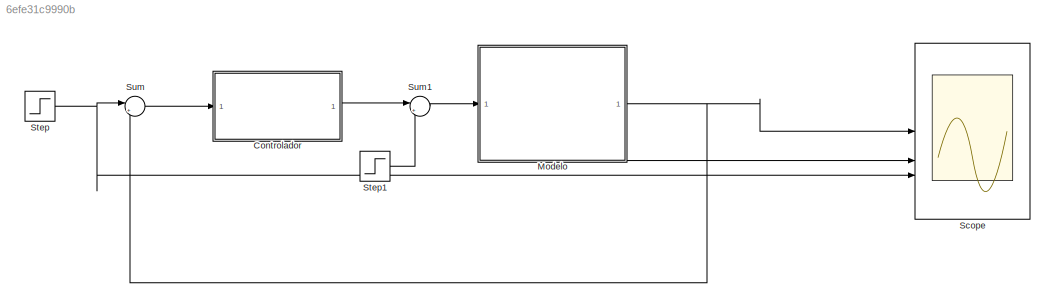
MODEL slx_6efe31c9990b
KIND model
CONFIG AbsTol = auto
CONFIG EnableMultiTasking = off
CONFIG FixedStep = Ts
CONFIG MaxStep = auto
CONFIG MinStep = auto
CONFIG RelTol = 1e-3
CONFIG SampleTimeConstraint = Unconstrained
CONFIG SolverName = FixedStepAuto
CONFIG StartTime = 0.0
CONFIG StopTime = Tsim
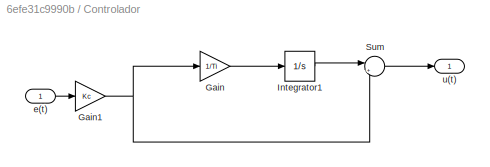
BLOCK [SubSystem] Controlador
BLOCK [Gain] Controlador/Gain
  Gain = 1/Ti
BLOCK [Gain] Controlador/Gain1
  Gain = Kc
BLOCK [Integrator] Controlador/Integrator1
  InitialCondition = X0/K
BLOCK [Sum] Controlador/Sum
  Inputs = |++
BLOCK [Inport] Controlador/e(t)
BLOCK [Outport] Controlador/u(t)
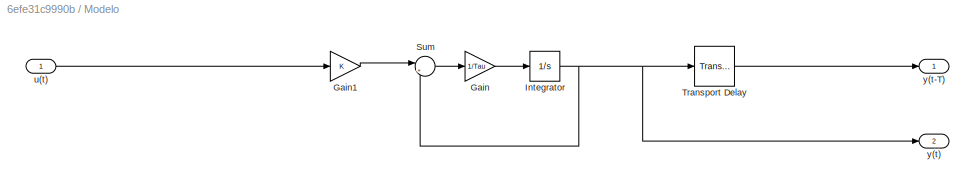
BLOCK [SubSystem] Modelo
BLOCK [Gain] Modelo/Gain
  Gain = 1/Tau
BLOCK [Gain] Modelo/Gain1
  Gain = K
BLOCK [Integrator] Modelo/Integrator
  InitialCondition = X0
BLOCK [Sum] Modelo/Sum
  Inputs = |+-
BLOCK [TransportDelay] Modelo/Transport Delay
  DelayTime = t0
  InitialOutput = X0
BLOCK [Inport] Modelo/u(t)
BLOCK [Outport] Modelo/y(t)
  Port = 2
BLOCK [Outport] Modelo/y(t-T)
BLOCK [Scope] Scope
  Floating = off
  NumInputPorts = 3
  ScopeSpecificationString = Simulink.scopes.TimeScopeBlockCfg('CurrentConfiguration', extmgr.ConfigurationSet(extmgr.Configuration('Core','General UI',true),extmgr.Configuration('Core','Source UI',true),extmgr.Configuration('Sources','WiredSimulink',true,'DataLoggingVariableName','y','DataLogging',true,'DataLoggingSaveFormat','StructureWithTime'),extmgr.Configuration('Visuals','Time Domain',true,'SerializedDisplays',{struct(...<+1508ch>
BLOCK [Step] Step
  After = 0.3
  Before = X0
  SampleTime = 0
  Time = 250
BLOCK [Step] Step1
  After = 0.01
  SampleTime = 0
  Time = 500
BLOCK [Sum] Sum
  Inputs = |+-
BLOCK [Sum] Sum1
  Inputs = |++
NET Controlador/Gain1:1 -> Controlador/Gain:1, Controlador/Sum:2
LINE Controlador/Gain:1 -> Controlador/Integrator1:1
LINE Controlador/Integrator1:1 -> Controlador/Sum:1
LINE Controlador/Sum:1 -> Controlador/u(t):1
LINE Controlador/e(t):1 -> Controlador/Gain1:1
LINE Controlador:1 -> Sum1:1
LINE Modelo/Gain1:1 -> Modelo/Sum:1
LINE Modelo/Gain:1 -> Modelo/Integrator:1
NET Modelo/Integrator:1 -> Modelo/Sum:2, Modelo/Transport Delay:1, Modelo/y(t):1
LINE Modelo/Sum:1 -> Modelo/Gain:1
LINE Modelo/Transport Delay:1 -> Modelo/y(t-T):1
LINE Modelo/u(t):1 -> Modelo/Gain1:1
NET Modelo:1 -> Scope:1, Sum:2
LINE Modelo:2 -> Scope:2
LINE Step1:1 -> Sum1:2
NET Step:1 -> Scope:3, Sum:1
LINE Sum1:1 -> Modelo:1
LINE Sum:1 -> Controlador:1
note: NET lines group one-source signal fan-out (src -> all destinations, sorted); 1:1 wires keep LINE
